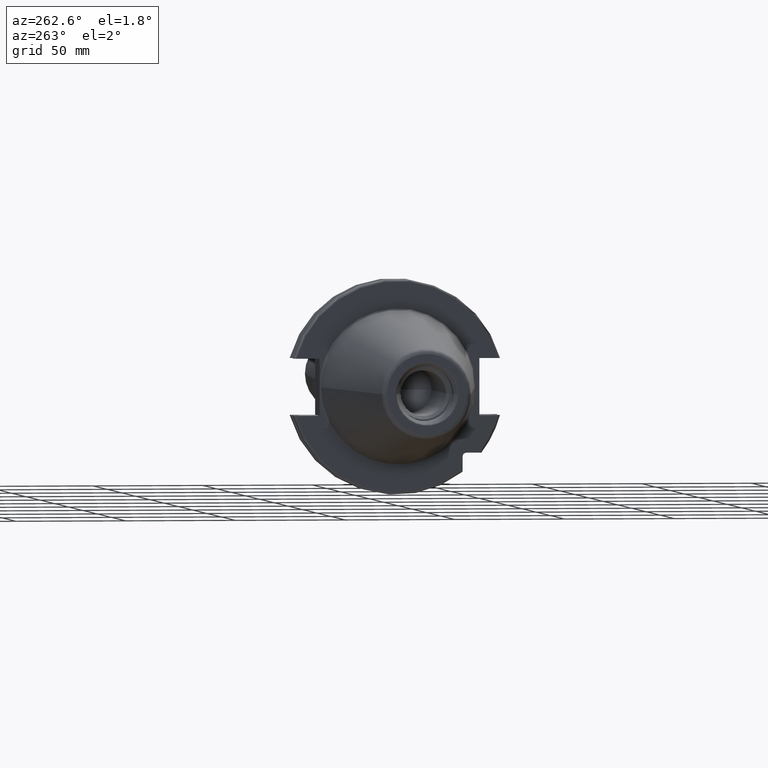
[diagram: clean part render]
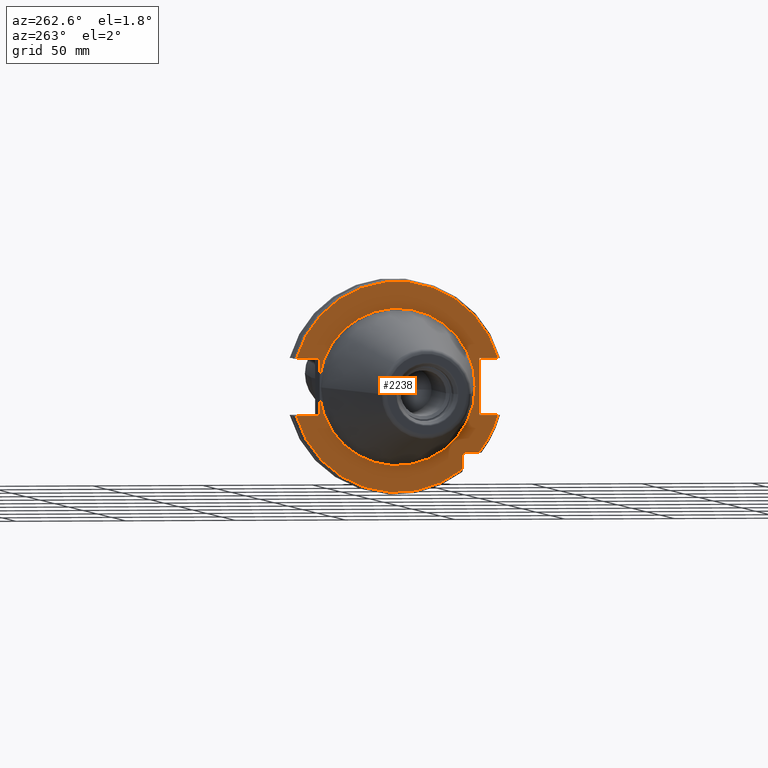
[diagram: same view with one face highlighted and labeled with its STEP entity id]
A machine part, auxiliary view. The second image highlights one B-rep face of the part: STEP entity #2238.
In plain terms, the highlighted planar face has unit normal (1, 0, 0).
Its self-contained STEP definition (entity closure, byte-faithful):
#117=CARTESIAN_POINT('',(3.2E0,0.E0,0.E0));
#118=DIRECTION('',(-1.E0,0.E0,0.E0));
#119=DIRECTION('',(0.E0,9.922698524245E-1,-1.240989120402E-1));
#120=AXIS2_PLACEMENT_3D('',#117,#118,#119);
#554=DIRECTION('',(0.E0,-1.E0,0.E0));
#555=VECTOR('',#554,5.653810627237E0);
#556=CARTESIAN_POINT('',(3.2E0,-3.16E1,-2.985E1));
#557=LINE('',#556,#555);
#558=DIRECTION('',(0.E0,0.E0,1.E0));
#559=VECTOR('',#558,5.653810627237E0);
#560=CARTESIAN_POINT('',(3.2E0,-2.985E1,-3.725381062724E1));
#561=LINE('',#560,#559);
#562=CARTESIAN_POINT('',(3.2E0,0.E0,0.E0));
#563=DIRECTION('',(-1.E0,0.E0,0.E0));
#564=DIRECTION('',(0.E0,9.627964123359E-1,-2.702278083268E-1));
#565=AXIS2_PLACEMENT_3D('',#562,#563,#564);
#567=DIRECTION('',(0.E0,-1.E0,0.E0));
#568=VECTOR('',#567,1.066149373389E1);
#569=CARTESIAN_POINT('',(3.2E0,4.596149373389E1,-1.29E1));
#570=LINE('',#569,#568);
#571=DIRECTION('',(0.E0,0.E0,-1.E0));
#572=VECTOR('',#571,8.485181204172E0);
#573=CARTESIAN_POINT('',(3.2E0,3.53E1,-4.414818795828E0));
#574=LINE('',#573,#572);
#575=DIRECTION('',(0.E0,0.E0,-1.E0));
#576=VECTOR('',#575,8.485181204172E0);
#577=CARTESIAN_POINT('',(3.2E0,3.53E1,1.29E1));
#578=LINE('',#577,#576);
#579=DIRECTION('',(0.E0,-1.E0,0.E0));
#580=VECTOR('',#579,1.066149373389E1);
#581=CARTESIAN_POINT('',(3.2E0,4.596149373389E1,1.29E1));
#582=LINE('',#581,#580);
#583=CARTESIAN_POINT('',(3.2E0,0.E0,0.E0));
#584=DIRECTION('',(1.E0,0.E0,0.E0));
#585=DIRECTION('',(0.E0,9.627964123359E-1,2.702278083268E-1));
#586=AXIS2_PLACEMENT_3D('',#583,#584,#585);
#588=DIRECTION('',(0.E0,1.E0,0.E0));
#589=VECTOR('',#588,8.461493733886E0);
#590=CARTESIAN_POINT('',(3.2E0,-4.596149373389E1,1.29E1));
#591=LINE('',#590,#589);
#592=DIRECTION('',(0.E0,0.E0,1.E0));
#593=VECTOR('',#592,2.58E1);
#594=CARTESIAN_POINT('',(3.2E0,-3.75E1,-1.29E1));
#595=LINE('',#594,#593);
#596=DIRECTION('',(0.E0,1.E0,0.E0));
#597=VECTOR('',#596,8.461493733886E0);
#598=CARTESIAN_POINT('',(3.2E0,-4.596149373389E1,-1.29E1));
#599=LINE('',#598,#597);
#600=CARTESIAN_POINT('',(3.2E0,0.E0,0.E0));
#601=DIRECTION('',(-1.E0,0.E0,0.E0));
#602=DIRECTION('',(0.E0,-7.803888060170E-1,-6.252945797329E-1));
#603=AXIS2_PLACEMENT_3D('',#600,#601,#602);
#614=CARTESIAN_POINT('',(3.2E0,-3.16E1,-3.16E1));
#615=DIRECTION('',(1.E0,0.E0,0.E0));
#616=DIRECTION('',(0.E0,1.E0,0.E0));
#617=AXIS2_PLACEMENT_3D('',#614,#615,#616);
#780=CARTESIAN_POINT('',(3.2E0,-3.725381062724E1,-2.985E1));
#1006=CARTESIAN_POINT('',(3.2E0,0.E0,0.E0));
#1007=DIRECTION('',(1.E0,0.E0,0.E0));
#1008=DIRECTION('',(0.E0,9.922698524245E-1,1.240989120402E-1));
#1009=AXIS2_PLACEMENT_3D('',#1006,#1007,#1008);
#1256=CARTESIAN_POINT('',(3.2E0,-3.5575E1,0.E0));
#1258=VERTEX_POINT('',#1256);
#1390=CARTESIAN_POINT('',(3.2E0,4.596149373389E1,1.29E1));
#1391=CARTESIAN_POINT('',(3.2E0,3.53E1,1.29E1));
#1392=VERTEX_POINT('',#1390);
#1393=VERTEX_POINT('',#1391);
#1394=CARTESIAN_POINT('',(3.2E0,3.53E1,4.414818795828E0));
#1395=VERTEX_POINT('',#1394);
#1396=CARTESIAN_POINT('',(3.2E0,3.53E1,-4.414818795828E0));
#1397=CARTESIAN_POINT('',(3.2E0,3.53E1,-1.29E1));
#1398=VERTEX_POINT('',#1396);
#1399=VERTEX_POINT('',#1397);
#1400=CARTESIAN_POINT('',(3.2E0,4.596149373389E1,-1.29E1));
#1401=VERTEX_POINT('',#1400);
#1402=CARTESIAN_POINT('',(3.2E0,-4.596149373389E1,-1.29E1));
#1403=CARTESIAN_POINT('',(3.2E0,-3.75E1,-1.29E1));
#1404=VERTEX_POINT('',#1402);
#1405=VERTEX_POINT('',#1403);
#1406=CARTESIAN_POINT('',(3.2E0,-3.75E1,1.29E1));
#1407=VERTEX_POINT('',#1406);
#1408=CARTESIAN_POINT('',(3.2E0,-4.596149373389E1,1.29E1));
#1409=VERTEX_POINT('',#1408);
#1441=CARTESIAN_POINT('',(3.2E0,-2.985E1,-3.725381062724E1));
#1442=VERTEX_POINT('',#1441);
#1447=CARTESIAN_POINT('',(3.2E0,-2.985E1,-3.16E1));
#1448=CARTESIAN_POINT('',(3.2E0,-3.16E1,-2.985E1));
#1449=VERTEX_POINT('',#1447);
#1450=VERTEX_POINT('',#1448);
#1469=VERTEX_POINT('',#780);
#2208=CARTESIAN_POINT('',(3.2E0,0.E0,0.E0));
#2209=DIRECTION('',(1.E0,0.E0,0.E0));
#2210=DIRECTION('',(0.E0,-1.E0,0.E0));
#2211=AXIS2_PLACEMENT_3D('',#2208,#2209,#2210);
#2212=PLANE('',#2211);
#2214=ORIENTED_EDGE('',*,*,#2213,.F.);
#2216=ORIENTED_EDGE('',*,*,#2215,.F.);
#2218=ORIENTED_EDGE('',*,*,#2217,.F.);
#2220=ORIENTED_EDGE('',*,*,#2219,.F.);
#2221=ORIENTED_EDGE('',*,*,#1935,.T.);
#2222=ORIENTED_EDGE('',*,*,#1673,.F.);
#2223=ORIENTED_EDGE('',*,*,#1648,.T.);
#2225=ORIENTED_EDGE('',*,*,#2224,.F.);
#2226=ORIENTED_EDGE('',*,*,#1668,.F.);
#2227=ORIENTED_EDGE('',*,*,#2005,.F.);
#2228=ORIENTED_EDGE('',*,*,#2203,.T.);
#2229=ORIENTED_EDGE('',*,*,#2063,.T.);
#2231=ORIENTED_EDGE('',*,*,#2230,.F.);
#2233=ORIENTED_EDGE('',*,*,#2232,.F.);
#2235=ORIENTED_EDGE('',*,*,#2234,.F.);
#2236=EDGE_LOOP('',(#2214,#2216,#2218,#2220,#2221,#2222,#2223,#2225,#2226,#2227,
#2228,#2229,#2231,#2233,#2235));
#2237=FACE_OUTER_BOUND('',#2236,.F.);
#2238=ADVANCED_FACE('',(#2237),#2212,.F.);
#121=CIRCLE('',#120,3.5575E1);
#566=CIRCLE('',#565,4.77375E1);
#587=CIRCLE('',#586,4.77375E1);
#604=CIRCLE('',#603,4.77375E1);
#618=CIRCLE('',#617,1.75E0);
#1010=CIRCLE('',#1009,3.5575E1);
#1648=EDGE_CURVE('',#1398,#1258,#121,.T.);
#1668=EDGE_CURVE('',#1393,#1395,#578,.T.);
#1673=EDGE_CURVE('',#1398,#1399,#574,.T.);
#1935=EDGE_CURVE('',#1401,#1399,#570,.T.);
#2005=EDGE_CURVE('',#1392,#1393,#582,.T.);
#2063=EDGE_CURVE('',#1409,#1407,#591,.T.);
#2203=EDGE_CURVE('',#1392,#1409,#587,.T.);
#2213=EDGE_CURVE('',#1450,#1469,#557,.T.);
#2215=EDGE_CURVE('',#1449,#1450,#618,.T.);
#2217=EDGE_CURVE('',#1442,#1449,#561,.T.);
#2219=EDGE_CURVE('',#1401,#1442,#566,.T.);
#2224=EDGE_CURVE('',#1395,#1258,#1010,.T.);
#2230=EDGE_CURVE('',#1405,#1407,#595,.T.);
#2232=EDGE_CURVE('',#1404,#1405,#599,.T.);
#2234=EDGE_CURVE('',#1469,#1404,#604,.T.);